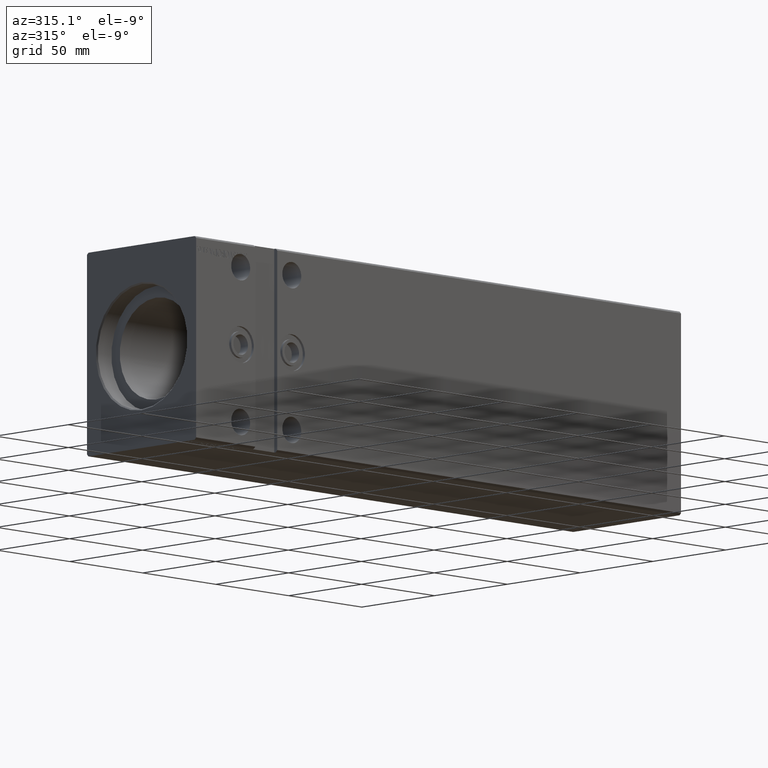
[diagram: clean part render]
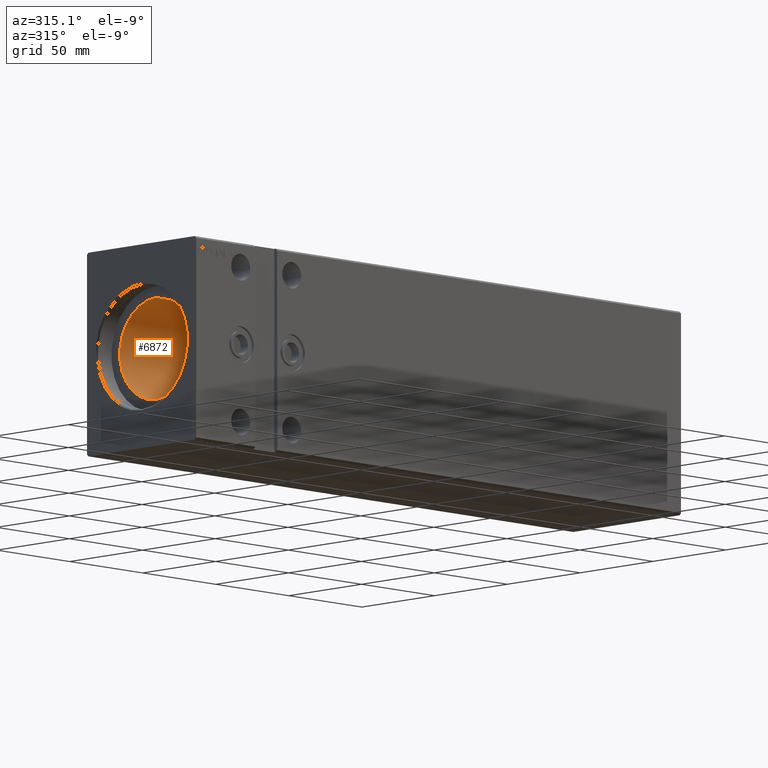
[diagram: same view with one face highlighted and labeled with its STEP entity id]
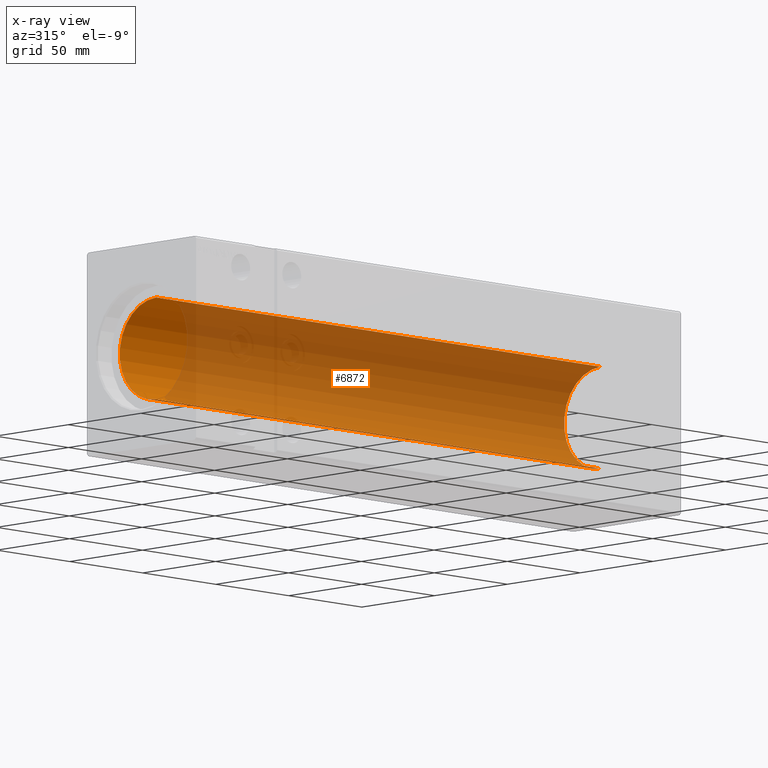
[diagram: x-ray of the same camera — body ghosted, the highlighted face saturated]
A machine part, auxiliary view. The second image highlights one B-rep face of the part: STEP entity #6872.
The next image is the same camera in x-ray: the body ghosted, the highlighted face saturated — about 88% of this face is hidden behind the body in this view.
In plain terms, the highlighted cylindrical surface (partial cylindrical patch) has radius 25 mm, axis along (-1, -0, -0).
Its self-contained STEP definition (entity closure, byte-faithful):
#1503 = CARTESIAN_POINT ( 'NONE',  ( 314.1999999999999886, 0.000000000000000000, 25.00000000000000000 ) ) ;
#1571 = EDGE_CURVE ( 'NONE', #28249, #36397, #24957, .T. ) ;
#2453 = DIRECTION ( 'NONE',  ( 0.000000000000000000, 0.000000000000000000, 1.000000000000000000 ) ) ;
#4258 = EDGE_CURVE ( 'NONE', #7071, #28249, #29719, .T. ) ;
#4819 = DIRECTION ( 'NONE',  ( -1.000000000000000000, 0.000000000000000000, 0.000000000000000000 ) ) ;
#6816 = ORIENTED_EDGE ( 'NONE', *, *, #19797, .F. ) ;
#6872 = ADVANCED_FACE ( 'NONE', ( #24691 ), #37055, .F. ) ;
#7071 = VERTEX_POINT ( 'NONE', #14305 ) ;
#7234 = ORIENTED_EDGE ( 'NONE', *, *, #1571, .T. ) ;
#7301 = CARTESIAN_POINT ( 'NONE',  ( 10.00000000000000888, 3.061616997868383043E-15, -25.00000000000000000 ) ) ;
#11164 = EDGE_CURVE ( 'NONE', #7071, #20761, #17161, .T. ) ;
#12462 = AXIS2_PLACEMENT_3D ( 'NONE', #31075, #21389, #2453 ) ;
#12791 = ORIENTED_EDGE ( 'NONE', *, *, #11164, .F. ) ;
#14066 = DIRECTION ( 'NONE',  ( -1.000000000000000000, -0.000000000000000000, -0.000000000000000000 ) ) ;
#14296 = DIRECTION ( 'NONE',  ( 0.000000000000000000, 0.000000000000000000, 1.000000000000000000 ) ) ;
#14305 = CARTESIAN_POINT ( 'NONE',  ( 314.1999999999999886, 0.000000000000000000, 25.00000000000000000 ) ) ;
#14627 = LINE ( 'NONE', #14833, #38453 ) ;
#14833 = CARTESIAN_POINT ( 'NONE',  ( 314.1999999999999886, 3.061616997868383043E-15, -25.00000000000000000 ) ) ;
#15704 = CARTESIAN_POINT ( 'NONE',  ( 314.1999999999999886, 3.061616997868383043E-15, -25.00000000000000000 ) ) ;
#16303 = DIRECTION ( 'NONE',  ( 0.000000000000000000, 0.000000000000000000, 1.000000000000000000 ) ) ;
#17036 = AXIS2_PLACEMENT_3D ( 'NONE', #33029, #4819, #14296 ) ;
#17161 = CIRCLE ( 'NONE', #33604, 25.00000000000000000 ) ;
#19379 = CARTESIAN_POINT ( 'NONE',  ( 314.1999999999999886, 0.000000000000000000, 0.000000000000000000 ) ) ;
#19797 = EDGE_CURVE ( 'NONE', #20761, #36397, #14627, .T. ) ;
#20079 = CARTESIAN_POINT ( 'NONE',  ( 10.00000000000000888, 0.000000000000000000, 25.00000000000000000 ) ) ;
#20761 = VERTEX_POINT ( 'NONE', #15704 ) ;
#21389 = DIRECTION ( 'NONE',  ( -1.000000000000000000, -0.000000000000000000, -0.000000000000000000 ) ) ;
#24691 = FACE_OUTER_BOUND ( 'NONE', #38492, .T. ) ;
#24911 = DIRECTION ( 'NONE',  ( -1.000000000000000000, -0.000000000000000000, -0.000000000000000000 ) ) ;
#24957 = CIRCLE ( 'NONE', #17036, 25.00000000000000000 ) ;
#27093 = ORIENTED_EDGE ( 'NONE', *, *, #4258, .T. ) ;
#28249 = VERTEX_POINT ( 'NONE', #20079 ) ;
#29719 = LINE ( 'NONE', #1503, #31559 ) ;
#31075 = CARTESIAN_POINT ( 'NONE',  ( 314.1999999999999886, 0.000000000000000000, 0.000000000000000000 ) ) ;
#31559 = VECTOR ( 'NONE', #14066, 1000.000000000000000 ) ;
#31946 = DIRECTION ( 'NONE',  ( -1.000000000000000000, 0.000000000000000000, 0.000000000000000000 ) ) ;
#33029 = CARTESIAN_POINT ( 'NONE',  ( 10.00000000000000888, 0.000000000000000000, 0.000000000000000000 ) ) ;
#33604 = AXIS2_PLACEMENT_3D ( 'NONE', #19379, #31946, #16303 ) ;
#36397 = VERTEX_POINT ( 'NONE', #7301 ) ;
#37055 = CYLINDRICAL_SURFACE ( 'NONE', #12462, 25.00000000000000000 ) ;
#38453 = VECTOR ( 'NONE', #24911, 1000.000000000000000 ) ;
#38492 = EDGE_LOOP ( 'NONE', ( #6816, #12791, #27093, #7234 ) ) ;